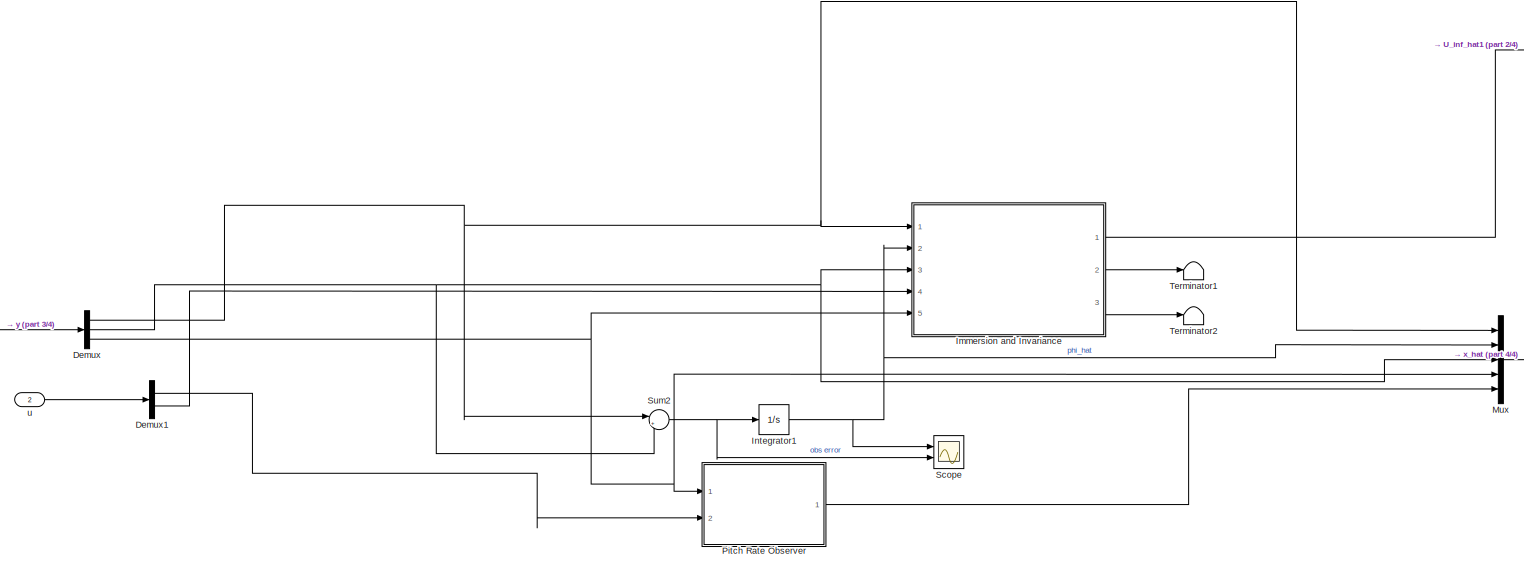
[diagram: root canvas - part 1/4, most of the canvas]
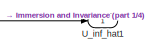
[diagram: root canvas - part 2/4, top right region]
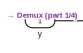
[diagram: root canvas - part 3/4, middle left region]
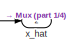
[diagram: root canvas - part 4/4, middle right region]
MODEL slx_254956eec7f7
KIND model
CONFIG AbsTol = auto
CONFIG EnableMultiTasking = off
CONFIG FixedStep = DT
CONFIG MaxStep = auto
CONFIG MinStep = auto
CONFIG RelTol = 1e-3
CONFIG SampleTimeConstraint = Unconstrained
CONFIG SolverName = FixedStepAuto
CONFIG StartTime = 0.0
CONFIG StopTime = 10.0
BLOCK [Demux] Demux
  Outputs = 3
  Ports = [1, 3]
BLOCK [Demux] Demux1
  Outputs = 2
  Ports = [1, 2]
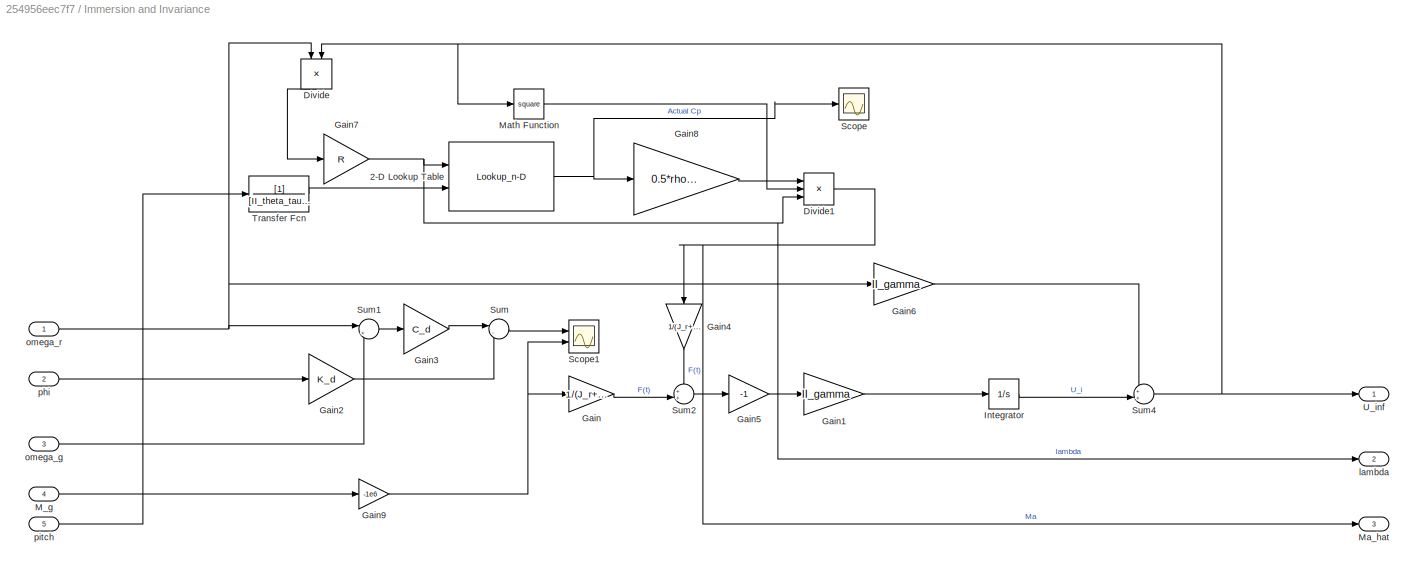
BLOCK [SubSystem] Immersion and Invariance
  Ports = [5, 3]
  RequestExecContextInheritance = off
  TreatAsAtomicUnit = on
BLOCK [Lookup_n-D] Immersion and Invariance/2-D Lookup Table
  BreakpointsForDimension1 = CP_lambda
  BreakpointsForDimension2 = CP_theta
  ExtrapMethod = Cubic spline
  InputPortMap = u0,u1
  InternalRulePriority = Speed
  InterpMethod = Cubic spline
  Ports = [2, 1]
  RndMeth = Simplest
  Table = CP
BLOCK [Product] Immersion and Invariance/Divide
  Inputs = */
  NameLocation = left
  Ports = [2, 1]
BLOCK [Product] Immersion and Invariance/Divide1
  Inputs = **/
  Ports = [3, 1]
BLOCK [Gain] Immersion and Invariance/Gain
  Gain = 1/(J_r+g*J_g)
BLOCK [Gain] Immersion and Invariance/Gain1
  Gain = II_gamma
BLOCK [Gain] Immersion and Invariance/Gain2
  Gain = K_d
BLOCK [Gain] Immersion and Invariance/Gain3
  Gain = C_d
BLOCK [Gain] Immersion and Invariance/Gain4
  Gain = 1/(J_r+g*J_g)
  NameLocation = left
BLOCK [Gain] Immersion and Invariance/Gain5
  Gain = -1
BLOCK [Gain] Immersion and Invariance/Gain6
  Gain = II_gamma
BLOCK [Gain] Immersion and Invariance/Gain7
  Gain = R
BLOCK [Gain] Immersion and Invariance/Gain8
  Gain = 0.5*rho*pi*R^3
BLOCK [Gain] Immersion and Invariance/Gain9
  Gain = -1e6
BLOCK [Integrator] Immersion and Invariance/Integrator
  InitialCondition = II_vx0
  Ports = [1, 1]
BLOCK [Inport] Immersion and Invariance/M_g
  Port = 4
BLOCK [Outport] Immersion and Invariance/Ma_hat
  Port = 3
BLOCK [Math] Immersion and Invariance/Math Function
  Operator = square
  Ports = [1, 1]
BLOCK [Scope] Immersion and Invariance/Scope
  Floating = off
  NumInputPorts = 1
  Ports = [1]
  ScopeSpecificationString = Simulink.scopes.TimeScopeBlockCfg('CurrentConfiguration', extmgr.ConfigurationSet(extmgr.Configuration('Core','General UI',true),extmgr.Configuration('Core','Source UI',true),extmgr.Configuration('Sources','WiredSimulink',true,'DataLoggingVariableName','ScopeData1'),extmgr.Configuration('Visuals','Time Domain',true,'SerializedDisplays',{struct('MinYLimReal','0.47478','MaxYLimReal','0.47512','YLabe...<+1366ch>
BLOCK [Scope] Immersion and Invariance/Scope1
  Floating = off
  NumInputPorts = 2
  Ports = [2]
  ScopeSpecificationString = Simulink.scopes.TimeScopeBlockCfg('CurrentConfiguration', extmgr.ConfigurationSet(extmgr.Configuration('Core','General UI',true),extmgr.Configuration('Core','Source UI',true),extmgr.Configuration('Sources','WiredSimulink',true,'DataLoggingVariableName','ScopeData1'),extmgr.Configuration('Visuals','Time Domain',true,'SerializedDisplays',{struct('MinYLimReal','-4282588.70893','MaxYLimReal','-3016736...<+1460ch>
BLOCK [Sum] Immersion and Invariance/Sum
  Inputs = |--
  Ports = [2, 1]
BLOCK [Sum] Immersion and Invariance/Sum1
  Inputs = |+-
  Ports = [2, 1]
BLOCK [Sum] Immersion and Invariance/Sum2
  Inputs = ++|
  Ports = [2, 1]
BLOCK [Sum] Immersion and Invariance/Sum4
  Inputs = ++|
  Ports = [2, 1]
BLOCK [TransferFcn] Immersion and Invariance/Transfer Fcn
  Denominator = [II_theta_tau 1]
BLOCK [Outport] Immersion and Invariance/U_inf
BLOCK [Outport] Immersion and Invariance/lambda
  Port = 2
BLOCK [Inport] Immersion and Invariance/omega_g
  Port = 3
BLOCK [Inport] Immersion and Invariance/omega_r
BLOCK [Inport] Immersion and Invariance/phi
  Port = 2
BLOCK [Inport] Immersion and Invariance/pitch
  Port = 5
BLOCK [Integrator] Integrator1
  InitialCondition = II_phi0
  Ports = [1, 1]
BLOCK [Mux] Mux
  DisplayOption = bar
  Inputs = 5
  Ports = [5, 1]
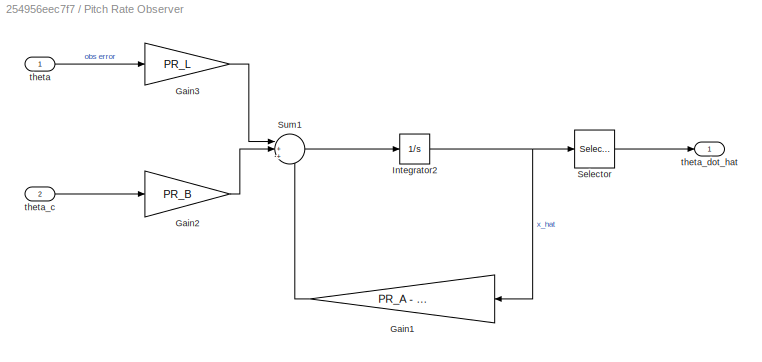
BLOCK [SubSystem] Pitch Rate Observer
  Ports = [2, 1]
  RequestExecContextInheritance = off
  TreatAsAtomicUnit = on
BLOCK [Gain] Pitch Rate Observer/Gain1
  Gain = PR_A - PR_L*PR_C
  Multiplication = Matrix(K*u)
  NameLocation = top
BLOCK [Gain] Pitch Rate Observer/Gain2
  Gain = PR_B
BLOCK [Gain] Pitch Rate Observer/Gain3
  Gain = PR_L
BLOCK [Integrator] Pitch Rate Observer/Integrator2
  InitialCondition = PR_theta0
  Ports = [1, 1]
BLOCK [Selector] Pitch Rate Observer/Selector
  IndexOptions = Index vector (dialog)
  Indices = [2]
  InputPortWidth = 2
  OutputSizes = 1
  Ports = [1, 1]
BLOCK [Sum] Pitch Rate Observer/Sum1
  Inputs = |+++
  Ports = [3, 1]
BLOCK [Inport] Pitch Rate Observer/theta
BLOCK [Inport] Pitch Rate Observer/theta_c
  Port = 2
BLOCK [Outport] Pitch Rate Observer/theta_dot_hat
BLOCK [Scope] Scope
  Floating = off
  NumInputPorts = 2
  Ports = [2]
  ScopeSpecificationString = Simulink.scopes.TimeScopeBlockCfg('CurrentConfiguration', extmgr.ConfigurationSet(extmgr.Configuration('Core','General UI',true),extmgr.Configuration('Core','Source UI',true),extmgr.Configuration('Sources','WiredSimulink',true,'DataLoggingVariableName','ScopeData1'),extmgr.Configuration('Visuals','Time Domain',true,'SerializedDisplays',{struct('MinYLimReal','-1.00000','MaxYLimReal','1.00000','YLab...<+1401ch>
BLOCK [Sum] Sum2
  Inputs = |+-
  Ports = [2, 1]
BLOCK [Terminator] Terminator1
BLOCK [Terminator] Terminator2
BLOCK [Outport] U_inf_hat1
  PortDimensions = 1
BLOCK [Inport] u
  Port = 2
  PortDimensions = [2 1]
BLOCK [Outport] x_hat
  Port = 2
  PortDimensions = [5 1]
BLOCK [Inport] y
  PortDimensions = [3 1]
LINE Demux1:1 -> Pitch Rate Observer:2
LINE Demux1:2 -> Immersion and Invariance:4
NET Demux:1 -> Immersion and Invariance:1, Mux:1, Sum2:1
NET Demux:2 -> Immersion and Invariance:3, Mux:3, Sum2:2
NET Demux:3 -> Immersion and Invariance:5, Mux:4, Pitch Rate Observer:1
NET Immersion and Invariance/2-D Lookup Table:1 -> Immersion and Invariance/Gain8:1, Immersion and Invariance/Scope:1
NET Immersion and Invariance/Divide1:1 -> Immersion and Invariance/Gain4:1, Immersion and Invariance/Ma_hat:1
LINE Immersion and Invariance/Divide:1 -> Immersion and Invariance/Gain7:1
LINE Immersion and Invariance/Gain1:1 -> Immersion and Invariance/Integrator:1
LINE Immersion and Invariance/Gain2:1 -> Immersion and Invariance/Sum:2
LINE Immersion and Invariance/Gain3:1 -> Immersion and Invariance/Sum:1
LINE Immersion and Invariance/Gain4:1 -> Immersion and Invariance/Sum2:1
LINE Immersion and Invariance/Gain5:1 -> Immersion and Invariance/Gain1:1
LINE Immersion and Invariance/Gain6:1 -> Immersion and Invariance/Sum4:1
NET Immersion and Invariance/Gain7:1 -> Immersion and Invariance/2-D Lookup Table:1, Immersion and Invariance/Divide1:3, Immersion and Invariance/lambda:1
LINE Immersion and Invariance/Gain8:1 -> Immersion and Invariance/Divide1:1
NET Immersion and Invariance/Gain9:1 -> Immersion and Invariance/Gain:1, Immersion and Invariance/Scope1:2
LINE Immersion and Invariance/Gain:1 -> Immersion and Invariance/Sum2:2
LINE Immersion and Invariance/Integrator:1 -> Immersion and Invariance/Sum4:2
LINE Immersion and Invariance/M_g:1 -> Immersion and Invariance/Gain9:1
LINE Immersion and Invariance/Math Function:1 -> Immersion and Invariance/Divide1:2
LINE Immersion and Invariance/Sum1:1 -> Immersion and Invariance/Gain3:1
LINE Immersion and Invariance/Sum2:1 -> Immersion and Invariance/Gain5:1
NET Immersion and Invariance/Sum4:1 -> Immersion and Invariance/Divide:2, Immersion and Invariance/Math Function:1, Immersion and Invariance/U_inf:1
LINE Immersion and Invariance/Sum:1 -> Immersion and Invariance/Scope1:1
LINE Immersion and Invariance/Transfer Fcn:1 -> Immersion and Invariance/2-D Lookup Table:2
LINE Immersion and Invariance/omega_g:1 -> Immersion and Invariance/Sum1:2
NET Immersion and Invariance/omega_r:1 -> Immersion and Invariance/Divide:1, Immersion and Invariance/Gain6:1, Immersion and Invariance/Sum1:1
LINE Immersion and Invariance/phi:1 -> Immersion and Invariance/Gain2:1
LINE Immersion and Invariance/pitch:1 -> Immersion and Invariance/Transfer Fcn:1
LINE Immersion and Invariance:1 -> U_inf_hat1:1
LINE Immersion and Invariance:2 -> Terminator1:1
LINE Immersion and Invariance:3 -> Terminator2:1
NET Integrator1:1 -> Immersion and Invariance:2, Mux:2, Scope:1
LINE Mux:1 -> x_hat:1
LINE Pitch Rate Observer/Gain1:1 -> Pitch Rate Observer/Sum1:3
LINE Pitch Rate Observer/Gain2:1 -> Pitch Rate Observer/Sum1:2
LINE Pitch Rate Observer/Gain3:1 -> Pitch Rate Observer/Sum1:1
NET Pitch Rate Observer/Integrator2:1 -> Pitch Rate Observer/Gain1:1, Pitch Rate Observer/Selector:1
LINE Pitch Rate Observer/Selector:1 -> Pitch Rate Observer/theta_dot_hat:1
LINE Pitch Rate Observer/Sum1:1 -> Pitch Rate Observer/Integrator2:1
LINE Pitch Rate Observer/theta:1 -> Pitch Rate Observer/Gain3:1
LINE Pitch Rate Observer/theta_c:1 -> Pitch Rate Observer/Gain2:1
LINE Pitch Rate Observer:1 -> Mux:5
NET Sum2:1 -> Integrator1:1, Scope:2
LINE u:1 -> Demux1:1
LINE y:1 -> Demux:1
note: NET lines group one-source signal fan-out (src -> all destinations, sorted); 1:1 wires keep LINE
